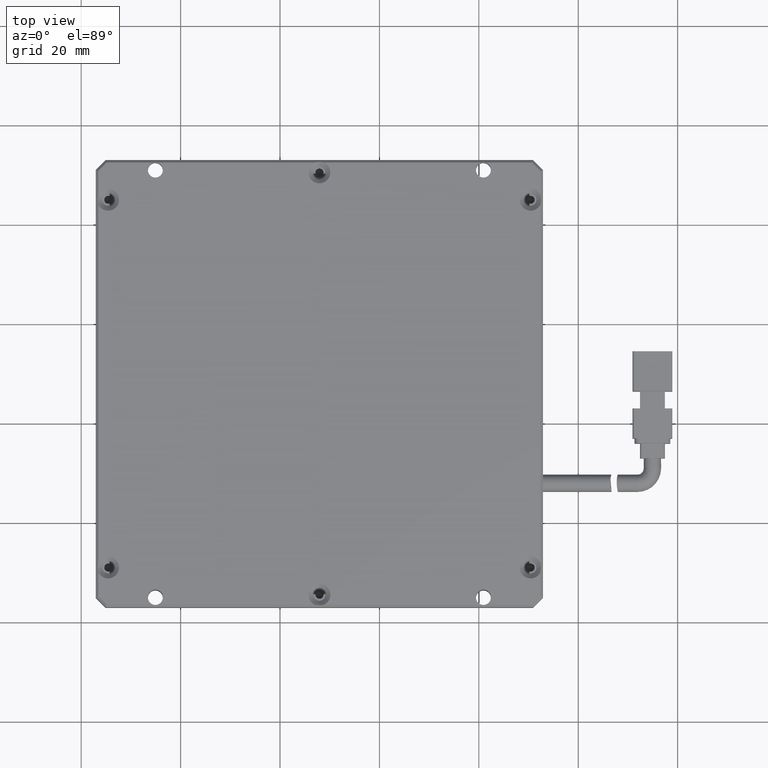
[diagram: clean part render]
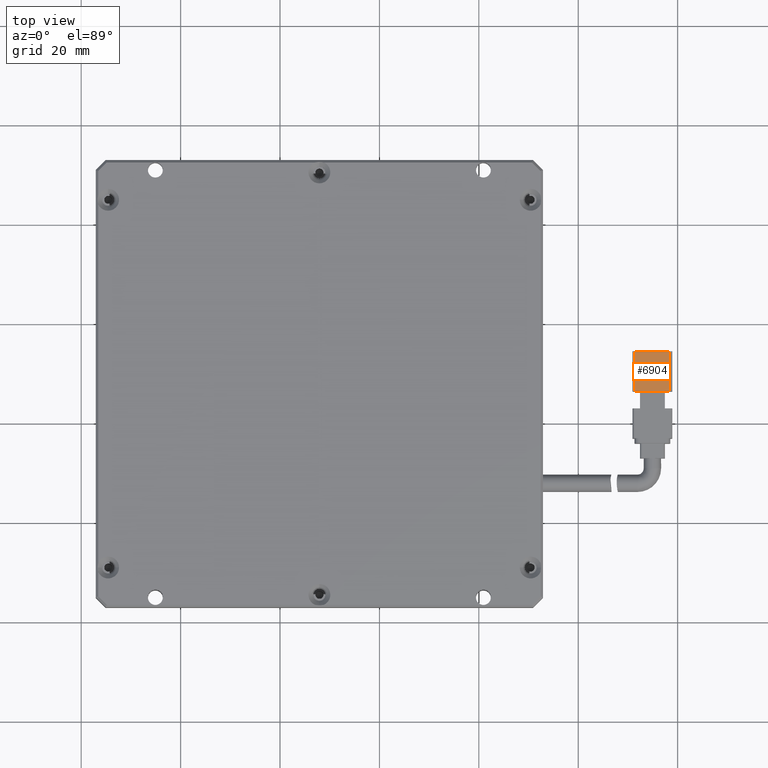
[diagram: same view with one face highlighted and labeled with its STEP entity id]
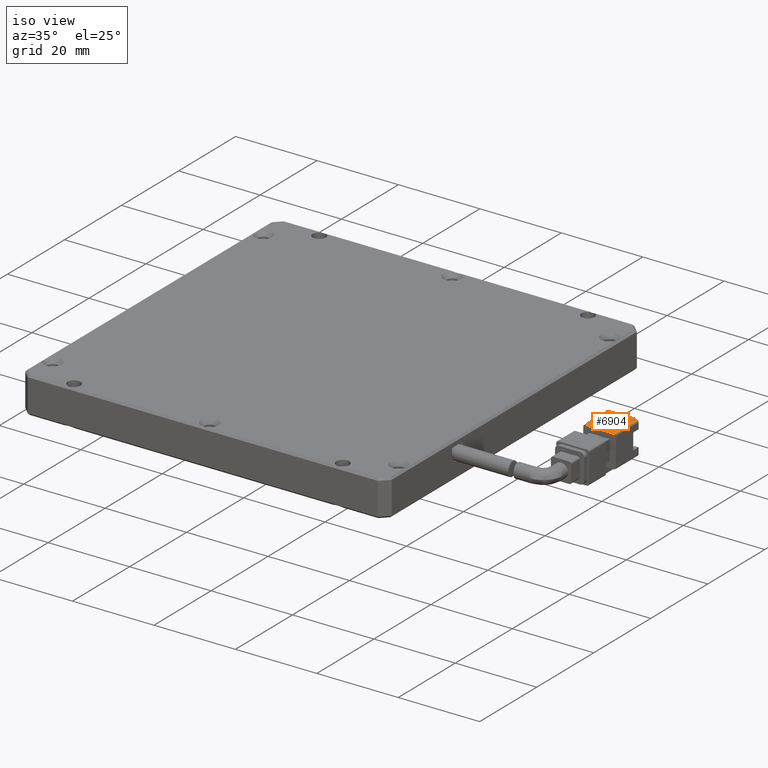
[diagram: same view with one face highlighted and labeled with its STEP entity id]
A machine part, top view. The second image highlights one B-rep face of the part: STEP entity #6904.
A second angle (iso view) of the same face is appended — the face is thin or edge-on in the first view.
In plain terms, the highlighted planar face has unit normal (0, 0, -1).
Its self-contained STEP definition (entity closure, byte-faithful):
#393 = CARTESIAN_POINT ( 'NONE',  ( 31.42074074074073700, 34.43999999999995500, 6.799999999999990900 ) ) ;
#1341 = DIRECTION ( 'NONE',  ( 2.066826593994807700E-016, 1.000000000000000000, 9.860761315262647600E-032 ) ) ;
#1403 = CARTESIAN_POINT ( 'NONE',  ( 31.42074074074080400, 34.43999999999995500, 6.799999999999990900 ) ) ;
#1802 = DIRECTION ( 'NONE',  ( -2.066826593994807700E-016, -1.000000000000000000, -9.860761315262647600E-032 ) ) ;
#1984 = VECTOR ( 'NONE', #1341, 1000.000000000000000 ) ;
#2293 = EDGE_CURVE ( 'NONE', #8411, #5149, #17138, .T. ) ;
#2451 = VERTEX_POINT ( 'NONE', #11143 ) ;
#2648 = EDGE_CURVE ( 'NONE', #2451, #5210, #14056, .T. ) ;
#3407 = VECTOR ( 'NONE', #5433, 1000.000000000000000 ) ;
#3901 = CARTESIAN_POINT ( 'NONE',  ( 31.42074074074073700, 26.44000000000001500, 6.799999999999990900 ) ) ;
#3995 = DIRECTION ( 'NONE',  ( -2.066826593994807700E-016, -1.000000000000000000, -9.860761315262647600E-032 ) ) ;
#4208 = EDGE_CURVE ( 'NONE', #5210, #8411, #16328, .T. ) ;
#4500 = CARTESIAN_POINT ( 'NONE',  ( 31.42074074074076900, 34.43999999999995500, 6.799999999999990900 ) ) ;
#5149 = VERTEX_POINT ( 'NONE', #16317 ) ;
#5210 = VERTEX_POINT ( 'NONE', #10985 ) ;
#5433 = DIRECTION ( 'NONE',  ( -1.000000000000000000, 2.066826593994807700E-016, -3.578115509225518300E-016 ) ) ;
#6780 = CARTESIAN_POINT ( 'NONE',  ( 38.42074074074074000, 34.43999999999995500, 6.799999999999992700 ) ) ;
#6904 = ADVANCED_FACE ( 'NONE', ( #9731 ), #15622, .F. ) ;
#8411 = VERTEX_POINT ( 'NONE', #4500 ) ;
#9129 = EDGE_LOOP ( 'NONE', ( #11311, #12149, #13377, #17356 ) ) ;
#9731 = FACE_OUTER_BOUND ( 'NONE', #9129, .T. ) ;
#10223 = DIRECTION ( 'NONE',  ( 3.578115509225518300E-016, 2.465417024410072200E-032, -1.000000000000000000 ) ) ;
#10985 = CARTESIAN_POINT ( 'NONE',  ( 31.42074074074076900, 26.43999999999999400, 6.799999999999990900 ) ) ;
#11143 = CARTESIAN_POINT ( 'NONE',  ( 38.42074074074074000, 26.44000000000001200, 6.799999999999992700 ) ) ;
#11311 = ORIENTED_EDGE ( 'NONE', *, *, #16644, .F. ) ;
#11898 = VECTOR ( 'NONE', #3995, 1000.000000000000000 ) ;
#12149 = ORIENTED_EDGE ( 'NONE', *, *, #2293, .F. ) ;
#13377 = ORIENTED_EDGE ( 'NONE', *, *, #4208, .F. ) ;
#14056 = LINE ( 'NONE', #3901, #3407 ) ;
#15257 = AXIS2_PLACEMENT_3D ( 'NONE', #393, #10223, #1802 ) ;
#15533 = LINE ( 'NONE', #6780, #11898 ) ;
#15622 = PLANE ( 'NONE',  #15257 ) ;
#16317 = CARTESIAN_POINT ( 'NONE',  ( 38.42074074074074000, 34.43999999999996900, 6.799999999999992700 ) ) ;
#16328 = LINE ( 'NONE', #1403, #1984 ) ;
#16644 = EDGE_CURVE ( 'NONE', #5149, #2451, #15533, .T. ) ;
#17138 = LINE ( 'NONE', #17816, #17565 ) ;
#17356 = ORIENTED_EDGE ( 'NONE', *, *, #2648, .F. ) ;
#17565 = VECTOR ( 'NONE', #17804, 1000.000000000000000 ) ;
#17804 = DIRECTION ( 'NONE',  ( 1.000000000000000000, -2.066826593994807700E-016, 3.578115509225518300E-016 ) ) ;
#17816 = CARTESIAN_POINT ( 'NONE',  ( 31.42074074074073700, 34.43999999999995500, 6.799999999999990900 ) ) ;